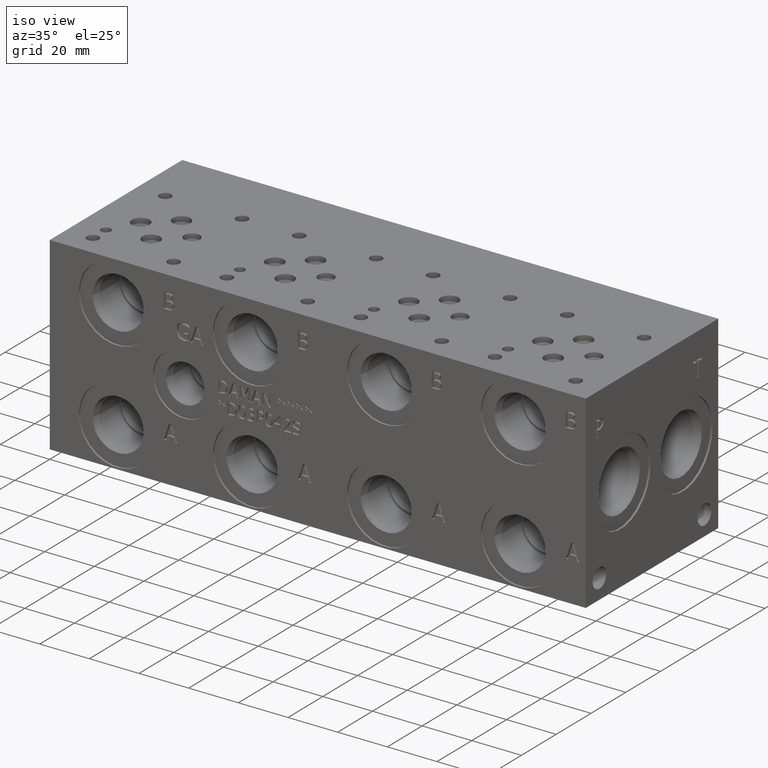
[diagram: clean part render]
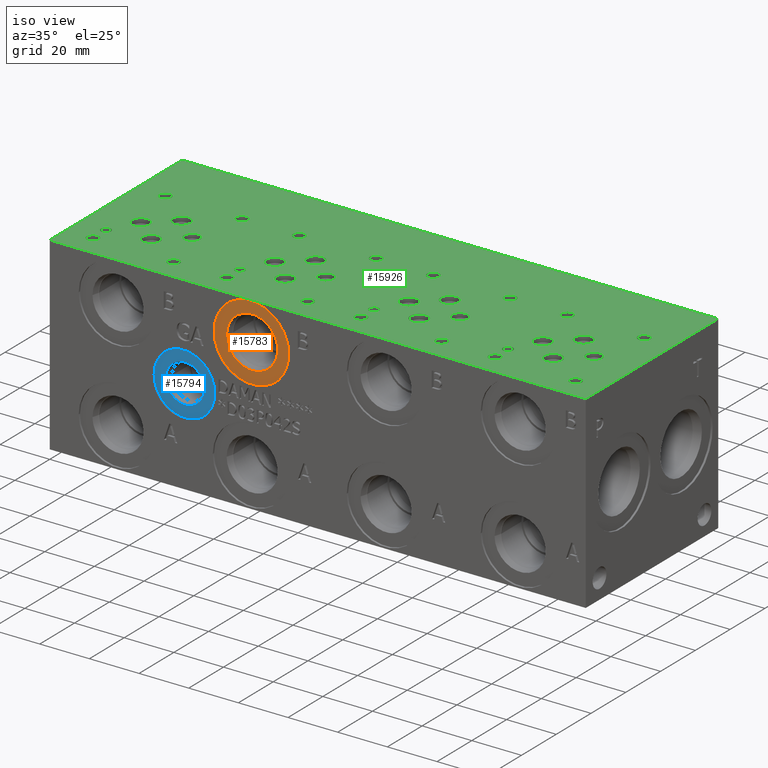
[diagram: same view with three faces highlighted in distinct colors, each labeled with its STEP entity id]
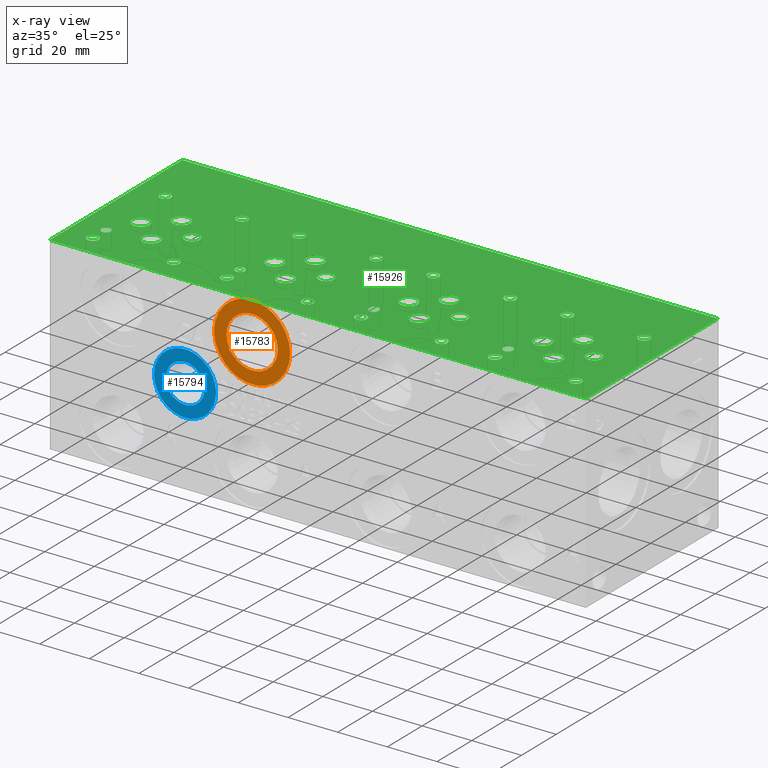
[diagram: x-ray of the same camera — body ghosted, the three highlighted faces saturated]
A machine part, iso view with three faces highlighted in distinct colors.
The next image is the same camera in x-ray (body ghosted, the three faces saturated) — at least one of them is partly hidden behind the body in this view.
Their STEP definitions:

[orange] entity #15783 — the highlighted planar face has unit normal (0, 1, 0).
#508=CIRCLE('',#16719,15.3162);
#509=CIRCLE('',#16720,15.3162);
#510=CIRCLE('',#16722,10.2997);
#511=CIRCLE('',#16723,10.2997);
#801=FACE_BOUND('',#3013,.T.);
#2088=FACE_OUTER_BOUND('',#3012,.T.);
#3012=EDGE_LOOP('',(#13377,#13378));
#3013=EDGE_LOOP('',(#13379,#13380));
#7291=VERTEX_POINT('',#26924);
#7292=VERTEX_POINT('',#26926);
#7293=VERTEX_POINT('',#26930);
#7294=VERTEX_POINT('',#26931);
#9401=EDGE_CURVE('',#7291,#7292,#508,.T.);
#9402=EDGE_CURVE('',#7292,#7291,#509,.T.);
#9403=EDGE_CURVE('',#7293,#7294,#510,.T.);
#9404=EDGE_CURVE('',#7294,#7293,#511,.T.);
#13377=ORIENTED_EDGE('',*,*,#9402,.F.);
#13378=ORIENTED_EDGE('',*,*,#9401,.F.);
#13379=ORIENTED_EDGE('',*,*,#9403,.T.);
#13380=ORIENTED_EDGE('',*,*,#9404,.T.);
#14532=PLANE('',#16721);
#15783=ADVANCED_FACE('',(#2088,#801),#14532,.F.);
#16719=AXIS2_PLACEMENT_3D('',#26927,#19882,#19883);
#16720=AXIS2_PLACEMENT_3D('',#26928,#19884,#19885);
#16721=AXIS2_PLACEMENT_3D('',#26929,#19886,#19887);
#16722=AXIS2_PLACEMENT_3D('',#26932,#19888,#19889);
#16723=AXIS2_PLACEMENT_3D('',#26933,#19890,#19891);
#19882=DIRECTION('center_axis',(0.,1.,0.));
#19883=DIRECTION('ref_axis',(1.,0.,0.));
#19884=DIRECTION('center_axis',(0.,1.,0.));
#19885=DIRECTION('ref_axis',(1.,0.,0.));
#19886=DIRECTION('center_axis',(0.,1.,0.));
#19887=DIRECTION('ref_axis',(0.,0.,1.));
#19888=DIRECTION('center_axis',(0.,1.,0.));
#19889=DIRECTION('ref_axis',(1.,0.,0.));
#19890=DIRECTION('center_axis',(0.,1.,0.));
#19891=DIRECTION('ref_axis',(1.,0.,0.));
#26924=CARTESIAN_POINT('',(65.659,0.7874,60.325));
#26926=CARTESIAN_POINT('',(96.2914,0.7874,60.325));
#26927=CARTESIAN_POINT('Origin',(80.9752,0.7874,60.325));
#26928=CARTESIAN_POINT('Origin',(80.9752,0.7874,60.325));
#26929=CARTESIAN_POINT('Origin',(91.2749,0.7874,60.325));
#26930=CARTESIAN_POINT('',(91.2749,0.7874,60.325));
#26931=CARTESIAN_POINT('',(70.6755,0.7874,60.325));
#26932=CARTESIAN_POINT('Origin',(80.9752,0.7874,60.325));
#26933=CARTESIAN_POINT('Origin',(80.9752,0.7874,60.325));

[blue] entity #15794 — the highlighted planar face has unit normal (0, 1, 0).
#526=CIRCLE('',#16748,12.5095);
#527=CIRCLE('',#16749,12.5095);
#528=CIRCLE('',#16751,7.7978);
#529=CIRCLE('',#16752,7.7978);
#803=FACE_BOUND('',#3026,.T.);
#2099=FACE_OUTER_BOUND('',#3025,.T.);
#3025=EDGE_LOOP('',(#13431,#13432));
#3026=EDGE_LOOP('',(#13433,#13434));
#7310=VERTEX_POINT('',#26981);
#7311=VERTEX_POINT('',#26983);
#7312=VERTEX_POINT('',#26987);
#7313=VERTEX_POINT('',#26988);
#9428=EDGE_CURVE('',#7310,#7311,#526,.T.);
#9429=EDGE_CURVE('',#7311,#7310,#527,.T.);
#9430=EDGE_CURVE('',#7312,#7313,#528,.T.);
#9431=EDGE_CURVE('',#7313,#7312,#529,.T.);
#13431=ORIENTED_EDGE('',*,*,#9429,.F.);
#13432=ORIENTED_EDGE('',*,*,#9428,.F.);
#13433=ORIENTED_EDGE('',*,*,#9430,.T.);
#13434=ORIENTED_EDGE('',*,*,#9431,.T.);
#14534=PLANE('',#16750);
#15794=ADVANCED_FACE('',(#2099,#803),#14534,.F.);
#16748=AXIS2_PLACEMENT_3D('',#26984,#19949,#19950);
#16749=AXIS2_PLACEMENT_3D('',#26985,#19951,#19952);
#16750=AXIS2_PLACEMENT_3D('',#26986,#19953,#19954);
#16751=AXIS2_PLACEMENT_3D('',#26989,#19955,#19956);
#16752=AXIS2_PLACEMENT_3D('',#26990,#19957,#19958);
#19949=DIRECTION('center_axis',(0.,1.,0.));
#19950=DIRECTION('ref_axis',(1.,0.,0.));
#19951=DIRECTION('center_axis',(0.,1.,0.));
#19952=DIRECTION('ref_axis',(1.,0.,0.));
#19953=DIRECTION('center_axis',(0.,1.,0.));
#19954=DIRECTION('ref_axis',(0.,0.,1.));
#19955=DIRECTION('center_axis',(0.,1.,0.));
#19956=DIRECTION('ref_axis',(1.,0.,0.));
#19957=DIRECTION('center_axis',(0.,1.,0.));
#19958=DIRECTION('ref_axis',(1.,0.,0.));
#26981=CARTESIAN_POINT('',(41.4655,0.7874,38.1));
#26983=CARTESIAN_POINT('',(66.4845,0.7874,38.1));
#26984=CARTESIAN_POINT('Origin',(53.975,0.7874,38.1));
#26985=CARTESIAN_POINT('Origin',(53.975,0.7874,38.1));
#26986=CARTESIAN_POINT('Origin',(61.7728,0.7874,38.1));
#26987=CARTESIAN_POINT('',(61.7728,0.7874,38.1));
#26988=CARTESIAN_POINT('',(46.1772,0.787399999999999,38.1));
#26989=CARTESIAN_POINT('Origin',(53.975,0.7874,38.1));
#26990=CARTESIAN_POINT('Origin',(53.975,0.7874,38.1));

[green] entity #15926 — the highlighted planar face has unit normal (0, 0, 1).
#273=CIRCLE('',#16356,1.9812);
#274=CIRCLE('',#16357,1.9812);
#277=CIRCLE('',#16362,1.9812);
#278=CIRCLE('',#16363,1.9812);
#281=CIRCLE('',#16368,1.9812);
#282=CIRCLE('',#16369,1.9812);
#285=CIRCLE('',#16374,3.175);
#286=CIRCLE('',#16375,3.175);
#289=CIRCLE('',#16380,3.175);
#290=CIRCLE('',#16381,3.175);
#293=CIRCLE('',#16386,3.175);
#294=CIRCLE('',#16387,3.175);
#297=CIRCLE('',#16392,3.175);
#298=CIRCLE('',#16393,3.175);
#301=CIRCLE('',#16398,3.5687);
#302=CIRCLE('',#16399,3.5687);
#305=CIRCLE('',#16404,3.5687);
#306=CIRCLE('',#16405,3.5687);
#309=CIRCLE('',#16410,3.5687);
#310=CIRCLE('',#16411,3.5687);
#313=CIRCLE('',#16416,3.5687);
#314=CIRCLE('',#16417,3.5687);
#317=CIRCLE('',#16422,3.5687);
#318=CIRCLE('',#16423,3.5687);
#321=CIRCLE('',#16428,3.5687);
#322=CIRCLE('',#16429,3.5687);
#325=CIRCLE('',#16434,3.5687);
#326=CIRCLE('',#16435,3.5687);
#329=CIRCLE('',#16440,3.5687);
#330=CIRCLE('',#16441,3.5687);
#333=CIRCLE('',#16446,3.5687);
#334=CIRCLE('',#16447,3.5687);
#337=CIRCLE('',#16452,3.5687);
#338=CIRCLE('',#16453,3.5687);
#341=CIRCLE('',#16458,3.5687);
#342=CIRCLE('',#16459,3.5687);
#345=CIRCLE('',#16464,3.5687);
#346=CIRCLE('',#16465,3.5687);
#349=CIRCLE('',#16470,1.9812);
#350=CIRCLE('',#16471,1.9812);
#356=CIRCLE('',#16480,2.413);
#357=CIRCLE('',#16481,2.413);
#363=CIRCLE('',#16491,2.413);
#364=CIRCLE('',#16492,2.413);
#370=CIRCLE('',#16502,2.413);
#371=CIRCLE('',#16503,2.413);
#377=CIRCLE('',#16513,2.413);
#378=CIRCLE('',#16514,2.413);
#384=CIRCLE('',#16524,2.413);
#385=CIRCLE('',#16525,2.413);
#391=CIRCLE('',#16535,2.413);
#392=CIRCLE('',#16536,2.413);
#398=CIRCLE('',#16546,2.413);
#399=CIRCLE('',#16547,2.413);
#405=CIRCLE('',#16557,2.413);
#406=CIRCLE('',#16558,2.413);
#412=CIRCLE('',#16568,2.413);
#413=CIRCLE('',#16569,2.413);
#419=CIRCLE('',#16579,2.413);
#420=CIRCLE('',#16580,2.413);
#426=CIRCLE('',#16590,2.413);
#427=CIRCLE('',#16591,2.413);
#433=CIRCLE('',#16601,2.413);
#434=CIRCLE('',#16602,2.413);
#440=CIRCLE('',#16612,2.413);
#441=CIRCLE('',#16613,2.413);
#447=CIRCLE('',#16623,2.413);
#448=CIRCLE('',#16624,2.413);
#454=CIRCLE('',#16634,2.413);
#455=CIRCLE('',#16635,2.413);
#461=CIRCLE('',#16645,2.413);
#462=CIRCLE('',#16646,2.413);
#826=FACE_BOUND('',#3181,.T.);
#827=FACE_BOUND('',#3182,.T.);
#828=FACE_BOUND('',#3183,.T.);
#829=FACE_BOUND('',#3184,.T.);
#830=FACE_BOUND('',#3185,.T.);
#831=FACE_BOUND('',#3186,.T.);
#832=FACE_BOUND('',#3187,.T.);
#833=FACE_BOUND('',#3188,.T.);
#834=FACE_BOUND('',#3189,.T.);
#835=FACE_BOUND('',#3190,.T.);
#836=FACE_BOUND('',#3191,.T.);
#837=FACE_BOUND('',#3192,.T.);
#838=FACE_BOUND('',#3193,.T.);
#839=FACE_BOUND('',#3194,.T.);
#840=FACE_BOUND('',#3195,.T.);
#841=FACE_BOUND('',#3196,.T.);
#842=FACE_BOUND('',#3197,.T.);
#843=FACE_BOUND('',#3198,.T.);
#844=FACE_BOUND('',#3199,.T.);
#845=FACE_BOUND('',#3200,.T.);
#846=FACE_BOUND('',#3201,.T.);
#847=FACE_BOUND('',#3202,.T.);
#848=FACE_BOUND('',#3203,.T.);
#849=FACE_BOUND('',#3204,.T.);
#850=FACE_BOUND('',#3205,.T.);
#851=FACE_BOUND('',#3206,.T.);
#852=FACE_BOUND('',#3207,.T.);
#853=FACE_BOUND('',#3208,.T.);
#854=FACE_BOUND('',#3209,.T.);
#855=FACE_BOUND('',#3210,.T.);
#856=FACE_BOUND('',#3211,.T.);
#857=FACE_BOUND('',#3212,.T.);
#858=FACE_BOUND('',#3213,.T.);
#859=FACE_BOUND('',#3214,.T.);
#860=FACE_BOUND('',#3215,.T.);
#861=FACE_BOUND('',#3216,.T.);
#2231=FACE_OUTER_BOUND('',#3180,.T.);
#3180=EDGE_LOOP('',(#14055,#14056,#14057,#14058));
#3181=EDGE_LOOP('',(#14059,#14060));
#3182=EDGE_LOOP('',(#14061,#14062));
#3183=EDGE_LOOP('',(#14063,#14064));
#3184=EDGE_LOOP('',(#14065,#14066));
#3185=EDGE_LOOP('',(#14067,#14068));
#3186=EDGE_LOOP('',(#14069,#14070));
#3187=EDGE_LOOP('',(#14071,#14072));
#3188=EDGE_LOOP('',(#14073,#14074));
#3189=EDGE_LOOP('',(#14075,#14076));
#3190=EDGE_LOOP('',(#14077,#14078));
#3191=EDGE_LOOP('',(#14079,#14080));
#3192=EDGE_LOOP('',(#14081,#14082));
#3193=EDGE_LOOP('',(#14083,#14084));
#3194=EDGE_LOOP('',(#14085,#14086));
#3195=EDGE_LOOP('',(#14087,#14088));
#3196=EDGE_LOOP('',(#14089,#14090));
#3197=EDGE_LOOP('',(#14091,#14092));
#3198=EDGE_LOOP('',(#14093,#14094));
#3199=EDGE_LOOP('',(#14095,#14096));
#3200=EDGE_LOOP('',(#14097,#14098));
#3201=EDGE_LOOP('',(#14099,#14100));
#3202=EDGE_LOOP('',(#14101,#14102));
#3203=EDGE_LOOP('',(#14103,#14104));
#3204=EDGE_LOOP('',(#14105,#14106));
#3205=EDGE_LOOP('',(#14107,#14108));
#3206=EDGE_LOOP('',(#14109,#14110));
#3207=EDGE_LOOP('',(#14111,#14112));
#3208=EDGE_LOOP('',(#14113,#14114));
#3209=EDGE_LOOP('',(#14115,#14116));
#3210=EDGE_LOOP('',(#14117,#14118));
#3211=EDGE_LOOP('',(#14119,#14120));
#3212=EDGE_LOOP('',(#14121,#14122));
#3213=EDGE_LOOP('',(#14123,#14124));
#3214=EDGE_LOOP('',(#14125,#14126));
#3215=EDGE_LOOP('',(#14127,#14128));
#3216=EDGE_LOOP('',(#14129,#14130));
#3498=LINE('',#22723,#4876);
#4287=LINE('',#25838,#5665);
#4345=LINE('',#26109,#5723);
#4595=LINE('',#27598,#5973);
#4876=VECTOR('',#17494,10.);
#5665=VECTOR('',#18867,10.);
#5723=VECTOR('',#18979,10.);
#5973=VECTOR('',#20679,10.);
#6276=VERTEX_POINT('',#22720);
#6277=VERTEX_POINT('',#22722);
#6935=VERTEX_POINT('',#25836);
#6993=VERTEX_POINT('',#26108);
#7021=VERTEX_POINT('',#26184);
#7022=VERTEX_POINT('',#26185);
#7026=VERTEX_POINT('',#26197);
#7027=VERTEX_POINT('',#26198);
#7031=VERTEX_POINT('',#26210);
#7032=VERTEX_POINT('',#26211);
#7036=VERTEX_POINT('',#26223);
#7037=VERTEX_POINT('',#26224);
#7041=VERTEX_POINT('',#26236);
#7042=VERTEX_POINT('',#26237);
#7046=VERTEX_POINT('',#26249);
#7047=VERTEX_POINT('',#26250);
#7051=VERTEX_POINT('',#26262);
#7052=VERTEX_POINT('',#26263);
#7056=VERTEX_POINT('',#26275);
#7057=VERTEX_POINT('',#26276);
#7061=VERTEX_POINT('',#26288);
#7062=VERTEX_POINT('',#26289);
#7066=VERTEX_POINT('',#26301);
#7067=VERTEX_POINT('',#26302);
#7071=VERTEX_POINT('',#26314);
#7072=VERTEX_POINT('',#26315);
#7076=VERTEX_POINT('',#26327);
#7077=VERTEX_POINT('',#26328);
#7081=VERTEX_POINT('',#26340);
#7082=VERTEX_POINT('',#26341);
#7086=VERTEX_POINT('',#26353);
#7087=VERTEX_POINT('',#26354);
#7091=VERTEX_POINT('',#26366);
#7092=VERTEX_POINT('',#26367);
#7096=VERTEX_POINT('',#26379);
#7097=VERTEX_POINT('',#26380);
#7101=VERTEX_POINT('',#26392);
#7102=VERTEX_POINT('',#26393);
#7106=VERTEX_POINT('',#26405);
#7107=VERTEX_POINT('',#26406);
#7111=VERTEX_POINT('',#26418);
#7112=VERTEX_POINT('',#26419);
#7116=VERTEX_POINT('',#26431);
#7117=VERTEX_POINT('',#26432);
#7124=VERTEX_POINT('',#26451);
#7125=VERTEX_POINT('',#26452);
#7132=VERTEX_POINT('',#26473);
#7133=VERTEX_POINT('',#26474);
#7140=VERTEX_POINT('',#26495);
#7141=VERTEX_POINT('',#26496);
#7148=VERTEX_POINT('',#26517);
#7149=VERTEX_POINT('',#26518);
#7156=VERTEX_POINT('',#26539);
#7157=VERTEX_POINT('',#26540);
#7164=VERTEX_POINT('',#26561);
#7165=VERTEX_POINT('',#26562);
#7172=VERTEX_POINT('',#26583);
#7173=VERTEX_POINT('',#26584);
#7180=VERTEX_POINT('',#26605);
#7181=VERTEX_POINT('',#26606);
#7188=VERTEX_POINT('',#26627);
#7189=VERTEX_POINT('',#26628);
#7196=VERTEX_POINT('',#26649);
#7197=VERTEX_POINT('',#26650);
#7204=VERTEX_POINT('',#26671);
#7205=VERTEX_POINT('',#26672);
#7212=VERTEX_POINT('',#26693);
#7213=VERTEX_POINT('',#26694);
#7220=VERTEX_POINT('',#26715);
#7221=VERTEX_POINT('',#26716);
#7228=VERTEX_POINT('',#26737);
#7229=VERTEX_POINT('',#26738);
#7236=VERTEX_POINT('',#26759);
#7237=VERTEX_POINT('',#26760);
#7244=VERTEX_POINT('',#26781);
#7245=VERTEX_POINT('',#26782);
#7960=EDGE_CURVE('',#6277,#6276,#3498,.T.);
#8939=EDGE_CURVE('',#6276,#6935,#4287,.T.);
#9021=EDGE_CURVE('',#6993,#6277,#4345,.T.);
#9058=EDGE_CURVE('',#7021,#7022,#273,.T.);
#9059=EDGE_CURVE('',#7022,#7021,#274,.T.);
#9064=EDGE_CURVE('',#7026,#7027,#277,.T.);
#9065=EDGE_CURVE('',#7027,#7026,#278,.T.);
#9070=EDGE_CURVE('',#7031,#7032,#281,.T.);
#9071=EDGE_CURVE('',#7032,#7031,#282,.T.);
#9076=EDGE_CURVE('',#7036,#7037,#285,.T.);
#9077=EDGE_CURVE('',#7037,#7036,#286,.T.);
#9082=EDGE_CURVE('',#7041,#7042,#289,.T.);
#9083=EDGE_CURVE('',#7042,#7041,#290,.T.);
#9088=EDGE_CURVE('',#7046,#7047,#293,.T.);
#9089=EDGE_CURVE('',#7047,#7046,#294,.T.);
#9094=EDGE_CURVE('',#7051,#7052,#297,.T.);
#9095=EDGE_CURVE('',#7052,#7051,#298,.T.);
#9100=EDGE_CURVE('',#7056,#7057,#301,.T.);
#9101=EDGE_CURVE('',#7057,#7056,#302,.T.);
#9106=EDGE_CURVE('',#7061,#7062,#305,.T.);
#9107=EDGE_CURVE('',#7062,#7061,#306,.T.);
#9112=EDGE_CURVE('',#7066,#7067,#309,.T.);
#9113=EDGE_CURVE('',#7067,#7066,#310,.T.);
#9118=EDGE_CURVE('',#7071,#7072,#313,.T.);
#9119=EDGE_CURVE('',#7072,#7071,#314,.T.);
#9124=EDGE_CURVE('',#7076,#7077,#317,.T.);
#9125=EDGE_CURVE('',#7077,#7076,#318,.T.);
#9130=EDGE_CURVE('',#7081,#7082,#321,.T.);
#9131=EDGE_CURVE('',#7082,#7081,#322,.T.);
#9136=EDGE_CURVE('',#7086,#7087,#325,.T.);
#9137=EDGE_CURVE('',#7087,#7086,#326,.T.);
#9142=EDGE_CURVE('',#7091,#7092,#329,.T.);
#9143=EDGE_CURVE('',#7092,#7091,#330,.T.);
#9148=EDGE_CURVE('',#7096,#7097,#333,.T.);
#9149=EDGE_CURVE('',#7097,#7096,#334,.T.);
#9154=EDGE_CURVE('',#7101,#7102,#337,.T.);
#9155=EDGE_CURVE('',#7102,#7101,#338,.T.);
#9160=EDGE_CURVE('',#7106,#7107,#341,.T.);
#9161=EDGE_CURVE('',#7107,#7106,#342,.T.);
#9166=EDGE_CURVE('',#7111,#7112,#345,.T.);
#9167=EDGE_CURVE('',#7112,#7111,#346,.T.);
#9172=EDGE_CURVE('',#7116,#7117,#349,.T.);
#9173=EDGE_CURVE('',#7117,#7116,#350,.T.);
#9181=EDGE_CURVE('',#7124,#7125,#356,.T.);
#9182=EDGE_CURVE('',#7125,#7124,#357,.T.);
#9191=EDGE_CURVE('',#7132,#7133,#363,.T.);
#9192=EDGE_CURVE('',#7133,#7132,#364,.T.);
#9201=EDGE_CURVE('',#7140,#7141,#370,.T.);
#9202=EDGE_CURVE('',#7141,#7140,#371,.T.);
#9211=EDGE_CURVE('',#7148,#7149,#377,.T.);
#9212=EDGE_CURVE('',#7149,#7148,#378,.T.);
#9221=EDGE_CURVE('',#7156,#7157,#384,.T.);
#9222=EDGE_CURVE('',#7157,#7156,#385,.T.);
#9231=EDGE_CURVE('',#7164,#7165,#391,.T.);
#9232=EDGE_CURVE('',#7165,#7164,#392,.T.);
#9241=EDGE_CURVE('',#7172,#7173,#398,.T.);
#9242=EDGE_CURVE('',#7173,#7172,#399,.T.);
#9251=EDGE_CURVE('',#7180,#7181,#405,.T.);
#9252=EDGE_CURVE('',#7181,#7180,#406,.T.);
#9261=EDGE_CURVE('',#7188,#7189,#412,.T.);
#9262=EDGE_CURVE('',#7189,#7188,#413,.T.);
#9271=EDGE_CURVE('',#7196,#7197,#419,.T.);
#9272=EDGE_CURVE('',#7197,#7196,#420,.T.);
#9281=EDGE_CURVE('',#7204,#7205,#426,.T.);
#9282=EDGE_CURVE('',#7205,#7204,#427,.T.);
#9291=EDGE_CURVE('',#7212,#7213,#433,.T.);
#9292=EDGE_CURVE('',#7213,#7212,#434,.T.);
#9301=EDGE_CURVE('',#7220,#7221,#440,.T.);
#9302=EDGE_CURVE('',#7221,#7220,#441,.T.);
#9311=EDGE_CURVE('',#7228,#7229,#447,.T.);
#9312=EDGE_CURVE('',#7229,#7228,#448,.T.);
#9321=EDGE_CURVE('',#7236,#7237,#454,.T.);
#9322=EDGE_CURVE('',#7237,#7236,#455,.T.);
#9331=EDGE_CURVE('',#7244,#7245,#461,.T.);
#9332=EDGE_CURVE('',#7245,#7244,#462,.T.);
#9716=EDGE_CURVE('',#6935,#6993,#4595,.T.);
#14055=ORIENTED_EDGE('',*,*,#7960,.T.);
#14056=ORIENTED_EDGE('',*,*,#8939,.T.);
#14057=ORIENTED_EDGE('',*,*,#9716,.T.);
#14058=ORIENTED_EDGE('',*,*,#9021,.T.);
#14059=ORIENTED_EDGE('',*,*,#9058,.T.);
#14060=ORIENTED_EDGE('',*,*,#9059,.T.);
#14061=ORIENTED_EDGE('',*,*,#9064,.T.);
#14062=ORIENTED_EDGE('',*,*,#9065,.T.);
#14063=ORIENTED_EDGE('',*,*,#9070,.T.);
#14064=ORIENTED_EDGE('',*,*,#9071,.T.);
#14065=ORIENTED_EDGE('',*,*,#9076,.T.);
#14066=ORIENTED_EDGE('',*,*,#9077,.T.);
#14067=ORIENTED_EDGE('',*,*,#9082,.T.);
#14068=ORIENTED_EDGE('',*,*,#9083,.T.);
#14069=ORIENTED_EDGE('',*,*,#9088,.T.);
#14070=ORIENTED_EDGE('',*,*,#9089,.T.);
#14071=ORIENTED_EDGE('',*,*,#9094,.T.);
#14072=ORIENTED_EDGE('',*,*,#9095,.T.);
#14073=ORIENTED_EDGE('',*,*,#9100,.T.);
#14074=ORIENTED_EDGE('',*,*,#9101,.T.);
#14075=ORIENTED_EDGE('',*,*,#9106,.T.);
#14076=ORIENTED_EDGE('',*,*,#9107,.T.);
#14077=ORIENTED_EDGE('',*,*,#9112,.T.);
#14078=ORIENTED_EDGE('',*,*,#9113,.T.);
#14079=ORIENTED_EDGE('',*,*,#9118,.T.);
#14080=ORIENTED_EDGE('',*,*,#9119,.T.);
#14081=ORIENTED_EDGE('',*,*,#9124,.T.);
#14082=ORIENTED_EDGE('',*,*,#9125,.T.);
#14083=ORIENTED_EDGE('',*,*,#9130,.T.);
#14084=ORIENTED_EDGE('',*,*,#9131,.T.);
#14085=ORIENTED_EDGE('',*,*,#9136,.T.);
#14086=ORIENTED_EDGE('',*,*,#9137,.T.);
#14087=ORIENTED_EDGE('',*,*,#9142,.T.);
#14088=ORIENTED_EDGE('',*,*,#9143,.T.);
#14089=ORIENTED_EDGE('',*,*,#9148,.T.);
#14090=ORIENTED_EDGE('',*,*,#9149,.T.);
#14091=ORIENTED_EDGE('',*,*,#9154,.T.);
#14092=ORIENTED_EDGE('',*,*,#9155,.T.);
#14093=ORIENTED_EDGE('',*,*,#9160,.T.);
#14094=ORIENTED_EDGE('',*,*,#9161,.T.);
#14095=ORIENTED_EDGE('',*,*,#9166,.T.);
#14096=ORIENTED_EDGE('',*,*,#9167,.T.);
#14097=ORIENTED_EDGE('',*,*,#9172,.T.);
#14098=ORIENTED_EDGE('',*,*,#9173,.T.);
#14099=ORIENTED_EDGE('',*,*,#9181,.T.);
#14100=ORIENTED_EDGE('',*,*,#9182,.T.);
#14101=ORIENTED_EDGE('',*,*,#9191,.T.);
#14102=ORIENTED_EDGE('',*,*,#9192,.T.);
#14103=ORIENTED_EDGE('',*,*,#9201,.T.);
#14104=ORIENTED_EDGE('',*,*,#9202,.T.);
#14105=ORIENTED_EDGE('',*,*,#9211,.T.);
#14106=ORIENTED_EDGE('',*,*,#9212,.T.);
#14107=ORIENTED_EDGE('',*,*,#9221,.T.);
#14108=ORIENTED_EDGE('',*,*,#9222,.T.);
#14109=ORIENTED_EDGE('',*,*,#9231,.T.);
#14110=ORIENTED_EDGE('',*,*,#9232,.T.);
#14111=ORIENTED_EDGE('',*,*,#9241,.T.);
#14112=ORIENTED_EDGE('',*,*,#9242,.T.);
#14113=ORIENTED_EDGE('',*,*,#9251,.T.);
#14114=ORIENTED_EDGE('',*,*,#9252,.T.);
#14115=ORIENTED_EDGE('',*,*,#9261,.T.);
#14116=ORIENTED_EDGE('',*,*,#9262,.T.);
#14117=ORIENTED_EDGE('',*,*,#9271,.T.);
#14118=ORIENTED_EDGE('',*,*,#9272,.T.);
#14119=ORIENTED_EDGE('',*,*,#9281,.T.);
#14120=ORIENTED_EDGE('',*,*,#9282,.T.);
#14121=ORIENTED_EDGE('',*,*,#9291,.T.);
#14122=ORIENTED_EDGE('',*,*,#9292,.T.);
#14123=ORIENTED_EDGE('',*,*,#9301,.T.);
#14124=ORIENTED_EDGE('',*,*,#9302,.T.);
#14125=ORIENTED_EDGE('',*,*,#9311,.T.);
#14126=ORIENTED_EDGE('',*,*,#9312,.T.);
#14127=ORIENTED_EDGE('',*,*,#9321,.T.);
#14128=ORIENTED_EDGE('',*,*,#9322,.T.);
#14129=ORIENTED_EDGE('',*,*,#9331,.T.);
#14130=ORIENTED_EDGE('',*,*,#9332,.T.);
#14561=PLANE('',#17062);
#15926=ADVANCED_FACE('',(#2231,#826,#827,#828,#829,#830,#831,#832,#833,
#834,#835,#836,#837,#838,#839,#840,#841,#842,#843,#844,#845,#846,#847,#848,
#849,#850,#851,#852,#853,#854,#855,#856,#857,#858,#859,#860,#861),#14561,
 .T.);
#16356=AXIS2_PLACEMENT_3D('',#26186,#19048,#19049);
#16357=AXIS2_PLACEMENT_3D('',#26187,#19050,#19051);
#16362=AXIS2_PLACEMENT_3D('',#26199,#19062,#19063);
#16363=AXIS2_PLACEMENT_3D('',#26200,#19064,#19065);
#16368=AXIS2_PLACEMENT_3D('',#26212,#19076,#19077);
#16369=AXIS2_PLACEMENT_3D('',#26213,#19078,#19079);
#16374=AXIS2_PLACEMENT_3D('',#26225,#19090,#19091);
#16375=AXIS2_PLACEMENT_3D('',#26226,#19092,#19093);
#16380=AXIS2_PLACEMENT_3D('',#26238,#19104,#19105);
#16381=AXIS2_PLACEMENT_3D('',#26239,#19106,#19107);
#16386=AXIS2_PLACEMENT_3D('',#26251,#19118,#19119);
#16387=AXIS2_PLACEMENT_3D('',#26252,#19120,#19121);
#16392=AXIS2_PLACEMENT_3D('',#26264,#19132,#19133);
#16393=AXIS2_PLACEMENT_3D('',#26265,#19134,#19135);
#16398=AXIS2_PLACEMENT_3D('',#26277,#19146,#19147);
#16399=AXIS2_PLACEMENT_3D('',#26278,#19148,#19149);
#16404=AXIS2_PLACEMENT_3D('',#26290,#19160,#19161);
#16405=AXIS2_PLACEMENT_3D('',#26291,#19162,#19163);
#16410=AXIS2_PLACEMENT_3D('',#26303,#19174,#19175);
#16411=AXIS2_PLACEMENT_3D('',#26304,#19176,#19177);
#16416=AXIS2_PLACEMENT_3D('',#26316,#19188,#19189);
#16417=AXIS2_PLACEMENT_3D('',#26317,#19190,#19191);
#16422=AXIS2_PLACEMENT_3D('',#26329,#19202,#19203);
#16423=AXIS2_PLACEMENT_3D('',#26330,#19204,#19205);
#16428=AXIS2_PLACEMENT_3D('',#26342,#19216,#19217);
#16429=AXIS2_PLACEMENT_3D('',#26343,#19218,#19219);
#16434=AXIS2_PLACEMENT_3D('',#26355,#19230,#19231);
#16435=AXIS2_PLACEMENT_3D('',#26356,#19232,#19233);
#16440=AXIS2_PLACEMENT_3D('',#26368,#19244,#19245);
#16441=AXIS2_PLACEMENT_3D('',#26369,#19246,#19247);
#16446=AXIS2_PLACEMENT_3D('',#26381,#19258,#19259);
#16447=AXIS2_PLACEMENT_3D('',#26382,#19260,#19261);
#16452=AXIS2_PLACEMENT_3D('',#26394,#19272,#19273);
#16453=AXIS2_PLACEMENT_3D('',#26395,#19274,#19275);
#16458=AXIS2_PLACEMENT_3D('',#26407,#19286,#19287);
#16459=AXIS2_PLACEMENT_3D('',#26408,#19288,#19289);
#16464=AXIS2_PLACEMENT_3D('',#26420,#19300,#19301);
#16465=AXIS2_PLACEMENT_3D('',#26421,#19302,#19303);
#16470=AXIS2_PLACEMENT_3D('',#26433,#19314,#19315);
#16471=AXIS2_PLACEMENT_3D('',#26434,#19316,#19317);
#16480=AXIS2_PLACEMENT_3D('',#26453,#19336,#19337);
#16481=AXIS2_PLACEMENT_3D('',#26454,#19338,#19339);
#16491=AXIS2_PLACEMENT_3D('',#26475,#19361,#19362);
#16492=AXIS2_PLACEMENT_3D('',#26476,#19363,#19364);
#16502=AXIS2_PLACEMENT_3D('',#26497,#19386,#19387);
#16503=AXIS2_PLACEMENT_3D('',#26498,#19388,#19389);
#16513=AXIS2_PLACEMENT_3D('',#26519,#19411,#19412);
#16514=AXIS2_PLACEMENT_3D('',#26520,#19413,#19414);
#16524=AXIS2_PLACEMENT_3D('',#26541,#19436,#19437);
#16525=AXIS2_PLACEMENT_3D('',#26542,#19438,#19439);
#16535=AXIS2_PLACEMENT_3D('',#26563,#19461,#19462);
#16536=AXIS2_PLACEMENT_3D('',#26564,#19463,#19464);
#16546=AXIS2_PLACEMENT_3D('',#26585,#19486,#19487);
#16547=AXIS2_PLACEMENT_3D('',#26586,#19488,#19489);
#16557=AXIS2_PLACEMENT_3D('',#26607,#19511,#19512);
#16558=AXIS2_PLACEMENT_3D('',#26608,#19513,#19514);
#16568=AXIS2_PLACEMENT_3D('',#26629,#19536,#19537);
#16569=AXIS2_PLACEMENT_3D('',#26630,#19538,#19539);
#16579=AXIS2_PLACEMENT_3D('',#26651,#19561,#19562);
#16580=AXIS2_PLACEMENT_3D('',#26652,#19563,#19564);
#16590=AXIS2_PLACEMENT_3D('',#26673,#19586,#19587);
#16591=AXIS2_PLACEMENT_3D('',#26674,#19588,#19589);
#16601=AXIS2_PLACEMENT_3D('',#26695,#19611,#19612);
#16602=AXIS2_PLACEMENT_3D('',#26696,#19613,#19614);
#16612=AXIS2_PLACEMENT_3D('',#26717,#19636,#19637);
#16613=AXIS2_PLACEMENT_3D('',#26718,#19638,#19639);
#16623=AXIS2_PLACEMENT_3D('',#26739,#19661,#19662);
#16624=AXIS2_PLACEMENT_3D('',#26740,#19663,#19664);
#16634=AXIS2_PLACEMENT_3D('',#26761,#19686,#19687);
#16635=AXIS2_PLACEMENT_3D('',#26762,#19688,#19689);
#16645=AXIS2_PLACEMENT_3D('',#26783,#19711,#19712);
#16646=AXIS2_PLACEMENT_3D('',#26784,#19713,#19714);
#17062=AXIS2_PLACEMENT_3D('',#27601,#20684,#20685);
#17494=DIRECTION('',(1.,0.,0.));
#18867=DIRECTION('',(0.,1.,0.));
#18979=DIRECTION('',(0.,-1.,0.));
#19048=DIRECTION('center_axis',(0.,0.,-1.));
#19049=DIRECTION('ref_axis',(1.,0.,0.));
#19050=DIRECTION('center_axis',(0.,0.,-1.));
#19051=DIRECTION('ref_axis',(1.,0.,0.));
#19062=DIRECTION('center_axis',(0.,0.,-1.));
#19063=DIRECTION('ref_axis',(1.,0.,0.));
#19064=DIRECTION('center_axis',(0.,0.,-1.));
#19065=DIRECTION('ref_axis',(1.,0.,0.));
#19076=DIRECTION('center_axis',(0.,0.,-1.));
#19077=DIRECTION('ref_axis',(1.,0.,0.));
#19078=DIRECTION('center_axis',(0.,0.,-1.));
#19079=DIRECTION('ref_axis',(1.,0.,0.));
#19090=DIRECTION('center_axis',(0.,0.,-1.));
#19091=DIRECTION('ref_axis',(1.,0.,0.));
#19092=DIRECTION('center_axis',(0.,0.,-1.));
#19093=DIRECTION('ref_axis',(1.,0.,0.));
#19104=DIRECTION('center_axis',(0.,0.,-1.));
#19105=DIRECTION('ref_axis',(1.,0.,0.));
#19106=DIRECTION('center_axis',(0.,0.,-1.));
#19107=DIRECTION('ref_axis',(1.,0.,0.));
#19118=DIRECTION('center_axis',(0.,0.,-1.));
#19119=DIRECTION('ref_axis',(1.,0.,0.));
#19120=DIRECTION('center_axis',(0.,0.,-1.));
#19121=DIRECTION('ref_axis',(1.,0.,0.));
#19132=DIRECTION('center_axis',(0.,0.,-1.));
#19133=DIRECTION('ref_axis',(1.,0.,0.));
#19134=DIRECTION('center_axis',(0.,0.,-1.));
#19135=DIRECTION('ref_axis',(1.,0.,0.));
#19146=DIRECTION('center_axis',(0.,0.,-1.));
#19147=DIRECTION('ref_axis',(1.,0.,0.));
#19148=DIRECTION('center_axis',(0.,0.,-1.));
#19149=DIRECTION('ref_axis',(1.,0.,0.));
#19160=DIRECTION('center_axis',(0.,0.,-1.));
#19161=DIRECTION('ref_axis',(1.,0.,0.));
#19162=DIRECTION('center_axis',(0.,0.,-1.));
#19163=DIRECTION('ref_axis',(1.,0.,0.));
#19174=DIRECTION('center_axis',(0.,0.,-1.));
#19175=DIRECTION('ref_axis',(1.,0.,0.));
#19176=DIRECTION('center_axis',(0.,0.,-1.));
#19177=DIRECTION('ref_axis',(1.,0.,0.));
#19188=DIRECTION('center_axis',(0.,0.,-1.));
#19189=DIRECTION('ref_axis',(1.,0.,0.));
#19190=DIRECTION('center_axis',(0.,0.,-1.));
#19191=DIRECTION('ref_axis',(1.,0.,0.));
#19202=DIRECTION('center_axis',(0.,0.,-1.));
#19203=DIRECTION('ref_axis',(1.,0.,0.));
#19204=DIRECTION('center_axis',(0.,0.,-1.));
#19205=DIRECTION('ref_axis',(1.,0.,0.));
#19216=DIRECTION('center_axis',(0.,0.,-1.));
#19217=DIRECTION('ref_axis',(1.,0.,0.));
#19218=DIRECTION('center_axis',(0.,0.,-1.));
#19219=DIRECTION('ref_axis',(1.,0.,0.));
#19230=DIRECTION('center_axis',(0.,0.,-1.));
#19231=DIRECTION('ref_axis',(1.,0.,0.));
#19232=DIRECTION('center_axis',(0.,0.,-1.));
#19233=DIRECTION('ref_axis',(1.,0.,0.));
#19244=DIRECTION('center_axis',(0.,0.,-1.));
#19245=DIRECTION('ref_axis',(1.,0.,0.));
#19246=DIRECTION('center_axis',(0.,0.,-1.));
#19247=DIRECTION('ref_axis',(1.,0.,0.));
#19258=DIRECTION('center_axis',(0.,0.,-1.));
#19259=DIRECTION('ref_axis',(1.,0.,0.));
#19260=DIRECTION('center_axis',(0.,0.,-1.));
#19261=DIRECTION('ref_axis',(1.,0.,0.));
#19272=DIRECTION('center_axis',(0.,0.,-1.));
#19273=DIRECTION('ref_axis',(1.,0.,0.));
#19274=DIRECTION('center_axis',(0.,0.,-1.));
#19275=DIRECTION('ref_axis',(1.,0.,0.));
#19286=DIRECTION('center_axis',(0.,0.,-1.));
#19287=DIRECTION('ref_axis',(1.,0.,0.));
#19288=DIRECTION('center_axis',(0.,0.,-1.));
#19289=DIRECTION('ref_axis',(1.,0.,0.));
#19300=DIRECTION('center_axis',(0.,0.,-1.));
#19301=DIRECTION('ref_axis',(1.,0.,0.));
#19302=DIRECTION('center_axis',(0.,0.,-1.));
#19303=DIRECTION('ref_axis',(1.,0.,0.));
#19314=DIRECTION('center_axis',(0.,0.,-1.));
#19315=DIRECTION('ref_axis',(1.,0.,0.));
#19316=DIRECTION('center_axis',(0.,0.,-1.));
#19317=DIRECTION('ref_axis',(1.,0.,0.));
#19336=DIRECTION('center_axis',(0.,0.,-1.));
#19337=DIRECTION('ref_axis',(1.,0.,0.));
#19338=DIRECTION('center_axis',(0.,0.,-1.));
#19339=DIRECTION('ref_axis',(1.,0.,0.));
#19361=DIRECTION('center_axis',(0.,0.,-1.));
#19362=DIRECTION('ref_axis',(1.,0.,0.));
#19363=DIRECTION('center_axis',(0.,0.,-1.));
#19364=DIRECTION('ref_axis',(1.,0.,0.));
#19386=DIRECTION('center_axis',(0.,0.,-1.));
#19387=DIRECTION('ref_axis',(1.,0.,0.));
#19388=DIRECTION('center_axis',(0.,0.,-1.));
#19389=DIRECTION('ref_axis',(1.,0.,0.));
#19411=DIRECTION('center_axis',(0.,0.,-1.));
#19412=DIRECTION('ref_axis',(1.,0.,0.));
#19413=DIRECTION('center_axis',(0.,0.,-1.));
#19414=DIRECTION('ref_axis',(1.,0.,0.));
#19436=DIRECTION('center_axis',(0.,0.,-1.));
#19437=DIRECTION('ref_axis',(1.,0.,0.));
#19438=DIRECTION('center_axis',(0.,0.,-1.));
#19439=DIRECTION('ref_axis',(1.,0.,0.));
#19461=DIRECTION('center_axis',(0.,0.,-1.));
#19462=DIRECTION('ref_axis',(1.,0.,0.));
#19463=DIRECTION('center_axis',(0.,0.,-1.));
#19464=DIRECTION('ref_axis',(1.,0.,0.));
#19486=DIRECTION('center_axis',(0.,0.,-1.));
#19487=DIRECTION('ref_axis',(1.,0.,0.));
#19488=DIRECTION('center_axis',(0.,0.,-1.));
#19489=DIRECTION('ref_axis',(1.,0.,0.));
#19511=DIRECTION('center_axis',(0.,0.,-1.));
#19512=DIRECTION('ref_axis',(1.,0.,0.));
#19513=DIRECTION('center_axis',(0.,0.,-1.));
#19514=DIRECTION('ref_axis',(1.,0.,0.));
#19536=DIRECTION('center_axis',(0.,0.,-1.));
#19537=DIRECTION('ref_axis',(1.,0.,0.));
#19538=DIRECTION('center_axis',(0.,0.,-1.));
#19539=DIRECTION('ref_axis',(1.,0.,0.));
#19561=DIRECTION('center_axis',(0.,0.,-1.));
#19562=DIRECTION('ref_axis',(1.,0.,0.));
#19563=DIRECTION('center_axis',(0.,0.,-1.));
#19564=DIRECTION('ref_axis',(1.,0.,0.));
#19586=DIRECTION('center_axis',(0.,0.,-1.));
#19587=DIRECTION('ref_axis',(1.,0.,0.));
#19588=DIRECTION('center_axis',(0.,0.,-1.));
#19589=DIRECTION('ref_axis',(1.,0.,0.));
#19611=DIRECTION('center_axis',(0.,0.,-1.));
#19612=DIRECTION('ref_axis',(1.,0.,0.));
#19613=DIRECTION('center_axis',(0.,0.,-1.));
#19614=DIRECTION('ref_axis',(1.,0.,0.));
#19636=DIRECTION('center_axis',(0.,0.,-1.));
#19637=DIRECTION('ref_axis',(1.,0.,0.));
#19638=DIRECTION('center_axis',(0.,0.,-1.));
#19639=DIRECTION('ref_axis',(1.,0.,0.));
#19661=DIRECTION('center_axis',(0.,0.,-1.));
#19662=DIRECTION('ref_axis',(1.,0.,0.));
#19663=DIRECTION('center_axis',(0.,0.,-1.));
#19664=DIRECTION('ref_axis',(1.,0.,0.));
#19686=DIRECTION('center_axis',(0.,0.,-1.));
#19687=DIRECTION('ref_axis',(1.,0.,0.));
#19688=DIRECTION('center_axis',(0.,0.,-1.));
#19689=DIRECTION('ref_axis',(1.,0.,0.));
#19711=DIRECTION('center_axis',(0.,0.,-1.));
#19712=DIRECTION('ref_axis',(1.,0.,0.));
#19713=DIRECTION('center_axis',(0.,0.,-1.));
#19714=DIRECTION('ref_axis',(1.,0.,0.));
#20679=DIRECTION('',(-1.,0.,0.));
#20684=DIRECTION('center_axis',(0.,0.,1.));
#20685=DIRECTION('ref_axis',(1.,0.,0.));
#22720=CARTESIAN_POINT('',(215.9,0.,76.2));
#22722=CARTESIAN_POINT('',(0.,0.,76.2));
#22723=CARTESIAN_POINT('',(0.,0.,76.2));
#25836=CARTESIAN_POINT('',(215.9,76.2,76.2));
#25838=CARTESIAN_POINT('',(215.9,0.,76.2));
#26108=CARTESIAN_POINT('',(0.,76.2,76.2));
#26109=CARTESIAN_POINT('',(0.,76.2,76.2));
#26184=CARTESIAN_POINT('',(120.65,17.018,76.2));
#26185=CARTESIAN_POINT('',(116.6876,17.018,76.2));
#26186=CARTESIAN_POINT('Origin',(118.6688,17.018,76.2));
#26187=CARTESIAN_POINT('Origin',(118.6688,17.018,76.2));
#26197=CARTESIAN_POINT('',(66.675,17.018,76.2));
#26198=CARTESIAN_POINT('',(62.7126,17.018,76.2));
#26199=CARTESIAN_POINT('Origin',(64.6938,17.018,76.2));
#26200=CARTESIAN_POINT('Origin',(64.6938,17.018,76.2));
#26210=CARTESIAN_POINT('',(174.625,17.018,76.2));
#26211=CARTESIAN_POINT('',(170.6626,17.018,76.2));
#26212=CARTESIAN_POINT('Origin',(172.6438,17.018,76.2));
#26213=CARTESIAN_POINT('Origin',(172.6438,17.018,76.2));
#26223=CARTESIAN_POINT('',(148.4376,28.575,76.2));
#26224=CARTESIAN_POINT('',(142.0876,28.575,76.2));
#26225=CARTESIAN_POINT('Origin',(145.2626,28.575,76.2));
#26226=CARTESIAN_POINT('Origin',(145.2626,28.575,76.2));
#26236=CARTESIAN_POINT('',(40.4876,28.575,76.2));
#26237=CARTESIAN_POINT('',(34.1376,28.575,76.2));
#26238=CARTESIAN_POINT('Origin',(37.3126,28.575,76.2));
#26239=CARTESIAN_POINT('Origin',(37.3126,28.575,76.2));
#26249=CARTESIAN_POINT('',(94.4626,28.575,76.2));
#26250=CARTESIAN_POINT('',(88.1126,28.575,76.2));
#26251=CARTESIAN_POINT('Origin',(91.2876,28.575,76.2));
#26252=CARTESIAN_POINT('Origin',(91.2876,28.575,76.2));
#26262=CARTESIAN_POINT('',(202.4126,28.575,76.2));
#26263=CARTESIAN_POINT('',(196.0626,28.575,76.2));
#26264=CARTESIAN_POINT('Origin',(199.2376,28.575,76.2));
#26265=CARTESIAN_POINT('Origin',(199.2376,28.575,76.2));
#26275=CARTESIAN_POINT('',(192.4685,37.3126,76.2));
#26276=CARTESIAN_POINT('',(185.3311,37.3126,76.2));
#26277=CARTESIAN_POINT('Origin',(188.8998,37.3126,76.2));
#26278=CARTESIAN_POINT('Origin',(188.8998,37.3126,76.2));
#26288=CARTESIAN_POINT('',(138.4935,19.8374,76.2));
#26289=CARTESIAN_POINT('',(131.3561,19.8374,76.2));
#26290=CARTESIAN_POINT('Origin',(134.9248,19.8374,76.2));
#26291=CARTESIAN_POINT('Origin',(134.9248,19.8374,76.2));
#26301=CARTESIAN_POINT('',(128.1811,28.575,76.2));
#26302=CARTESIAN_POINT('',(121.0437,28.575,76.2));
#26303=CARTESIAN_POINT('Origin',(124.6124,28.575,76.2));
#26304=CARTESIAN_POINT('Origin',(124.6124,28.575,76.2));
#26314=CARTESIAN_POINT('',(84.5185,37.3126,76.2));
#26315=CARTESIAN_POINT('',(77.3811,37.3126,76.2));
#26316=CARTESIAN_POINT('Origin',(80.9498,37.3126,76.2));
#26317=CARTESIAN_POINT('Origin',(80.9498,37.3126,76.2));
#26327=CARTESIAN_POINT('',(30.5435,19.8374,76.2));
#26328=CARTESIAN_POINT('',(23.4061,19.8374,76.2));
#26329=CARTESIAN_POINT('Origin',(26.9748,19.8374,76.2));
#26330=CARTESIAN_POINT('Origin',(26.9748,19.8374,76.2));
#26340=CARTESIAN_POINT('',(20.2311,28.575,76.2));
#26341=CARTESIAN_POINT('',(13.0937,28.575,76.2));
#26342=CARTESIAN_POINT('Origin',(16.6624,28.575,76.2));
#26343=CARTESIAN_POINT('Origin',(16.6624,28.575,76.2));
#26353=CARTESIAN_POINT('',(30.5435,37.3126,76.2));
#26354=CARTESIAN_POINT('',(23.4061,37.3126,76.2));
#26355=CARTESIAN_POINT('Origin',(26.9748,37.3126,76.2));
#26356=CARTESIAN_POINT('Origin',(26.9748,37.3126,76.2));
#26366=CARTESIAN_POINT('',(74.2061,28.575,76.2));
#26367=CARTESIAN_POINT('',(67.0687,28.575,76.2));
#26368=CARTESIAN_POINT('Origin',(70.6374,28.575,76.2));
#26369=CARTESIAN_POINT('Origin',(70.6374,28.575,76.2));
#26379=CARTESIAN_POINT('',(84.5185,19.8374,76.2));
#26380=CARTESIAN_POINT('',(77.3811,19.8374,76.2));
#26381=CARTESIAN_POINT('Origin',(80.9498,19.8374,76.2));
#26382=CARTESIAN_POINT('Origin',(80.9498,19.8374,76.2));
#26392=CARTESIAN_POINT('',(138.4935,37.3126,76.2));
#26393=CARTESIAN_POINT('',(131.3561,37.3126,76.2));
#26394=CARTESIAN_POINT('Origin',(134.9248,37.3126,76.2));
#26395=CARTESIAN_POINT('Origin',(134.9248,37.3126,76.2));
#26405=CARTESIAN_POINT('',(182.1561,28.575,76.2));
#26406=CARTESIAN_POINT('',(175.0187,28.575,76.2));
#26407=CARTESIAN_POINT('Origin',(178.5874,28.575,76.2));
#26408=CARTESIAN_POINT('Origin',(178.5874,28.575,76.2));
#26418=CARTESIAN_POINT('',(192.4685,19.8374,76.2));
#26419=CARTESIAN_POINT('',(185.3311,19.8374,76.2));
#26420=CARTESIAN_POINT('Origin',(188.8998,19.8374,76.2));
#26421=CARTESIAN_POINT('Origin',(188.8998,19.8374,76.2));
#26431=CARTESIAN_POINT('',(12.7,17.018,76.2));
#26432=CARTESIAN_POINT('',(8.7376,17.018,76.2));
#26433=CARTESIAN_POINT('Origin',(10.7188,17.018,76.2));
#26434=CARTESIAN_POINT('Origin',(10.7188,17.018,76.2));
#26451=CARTESIAN_POINT('',(207.5942,9.525,76.2));
#26452=CARTESIAN_POINT('',(202.7682,9.525,76.2));
#26453=CARTESIAN_POINT('Origin',(205.1812,9.525,76.2));
#26454=CARTESIAN_POINT('Origin',(205.1812,9.525,76.2));
#26473=CARTESIAN_POINT('',(175.8442,50.0126,76.2));
#26474=CARTESIAN_POINT('',(171.0182,50.0126,76.2));
#26475=CARTESIAN_POINT('Origin',(173.4312,50.0126,76.2));
#26476=CARTESIAN_POINT('Origin',(173.4312,50.0126,76.2));
#26495=CARTESIAN_POINT('',(153.6192,9.525,76.2));
#26496=CARTESIAN_POINT('',(148.7932,9.525,76.2));
#26497=CARTESIAN_POINT('Origin',(151.2062,9.525,76.2));
#26498=CARTESIAN_POINT('Origin',(151.2062,9.525,76.2));
#26517=CARTESIAN_POINT('',(121.8692,50.0126,76.2));
#26518=CARTESIAN_POINT('',(117.0432,50.0126,76.2));
#26519=CARTESIAN_POINT('Origin',(119.4562,50.0126,76.2));
#26520=CARTESIAN_POINT('Origin',(119.4562,50.0126,76.2));
#26539=CARTESIAN_POINT('',(99.6442,9.525,76.2));
#26540=CARTESIAN_POINT('',(94.8182,9.525,76.2));
#26541=CARTESIAN_POINT('Origin',(97.2312,9.525,76.2));
#26542=CARTESIAN_POINT('Origin',(97.2312,9.525,76.2));
#26561=CARTESIAN_POINT('',(67.8942,50.0126,76.2));
#26562=CARTESIAN_POINT('',(63.0682,50.0126,76.2));
#26563=CARTESIAN_POINT('Origin',(65.4812,50.0126,76.2));
#26564=CARTESIAN_POINT('Origin',(65.4812,50.0126,76.2));
#26583=CARTESIAN_POINT('',(45.6692,9.525,76.2));
#26584=CARTESIAN_POINT('',(40.8432,9.525,76.2));
#26585=CARTESIAN_POINT('Origin',(43.2562,9.525,76.2));
#26586=CARTESIAN_POINT('Origin',(43.2562,9.525,76.2));
#26605=CARTESIAN_POINT('',(13.9192,50.0126,76.2));
#26606=CARTESIAN_POINT('',(9.0932,50.0126,76.2));
#26607=CARTESIAN_POINT('Origin',(11.5062,50.0126,76.2));
#26608=CARTESIAN_POINT('Origin',(11.5062,50.0126,76.2));
#26627=CARTESIAN_POINT('',(44.8818,50.0126,76.2));
#26628=CARTESIAN_POINT('',(40.0558,50.0126,76.2));
#26629=CARTESIAN_POINT('Origin',(42.4688,50.0126,76.2));
#26630=CARTESIAN_POINT('Origin',(42.4688,50.0126,76.2));
#26649=CARTESIAN_POINT('',(13.1318,9.525,76.2));
#26650=CARTESIAN_POINT('',(8.3058,9.525,76.2));
#26651=CARTESIAN_POINT('Origin',(10.7188,9.525,76.2));
#26652=CARTESIAN_POINT('Origin',(10.7188,9.525,76.2));
#26671=CARTESIAN_POINT('',(98.8568,50.0126,76.2));
#26672=CARTESIAN_POINT('',(94.0308,50.0126,76.2));
#26673=CARTESIAN_POINT('Origin',(96.4438,50.0126,76.2));
#26674=CARTESIAN_POINT('Origin',(96.4438,50.0126,76.2));
#26693=CARTESIAN_POINT('',(67.1068,9.525,76.2));
#26694=CARTESIAN_POINT('',(62.2808,9.525,76.2));
#26695=CARTESIAN_POINT('Origin',(64.6938,9.525,76.2));
#26696=CARTESIAN_POINT('Origin',(64.6938,9.525,76.2));
#26715=CARTESIAN_POINT('',(152.8318,50.0126,76.2));
#26716=CARTESIAN_POINT('',(148.0058,50.0126,76.2));
#26717=CARTESIAN_POINT('Origin',(150.4188,50.0126,76.2));
#26718=CARTESIAN_POINT('Origin',(150.4188,50.0126,76.2));
#26737=CARTESIAN_POINT('',(121.0818,9.525,76.2));
#26738=CARTESIAN_POINT('',(116.2558,9.525,76.2));
#26739=CARTESIAN_POINT('Origin',(118.6688,9.525,76.2));
#26740=CARTESIAN_POINT('Origin',(118.6688,9.525,76.2));
#26759=CARTESIAN_POINT('',(206.8068,50.0126,76.2));
#26760=CARTESIAN_POINT('',(201.9808,50.0126,76.2));
#26761=CARTESIAN_POINT('Origin',(204.3938,50.0126,76.2));
#26762=CARTESIAN_POINT('Origin',(204.3938,50.0126,76.2));
#26781=CARTESIAN_POINT('',(175.0568,9.525,76.2));
#26782=CARTESIAN_POINT('',(170.2308,9.525,76.2));
#26783=CARTESIAN_POINT('Origin',(172.6438,9.525,76.2));
#26784=CARTESIAN_POINT('Origin',(172.6438,9.525,76.2));
#27598=CARTESIAN_POINT('',(215.9,76.2,76.2));
#27601=CARTESIAN_POINT('Origin',(107.95,38.1,76.2));